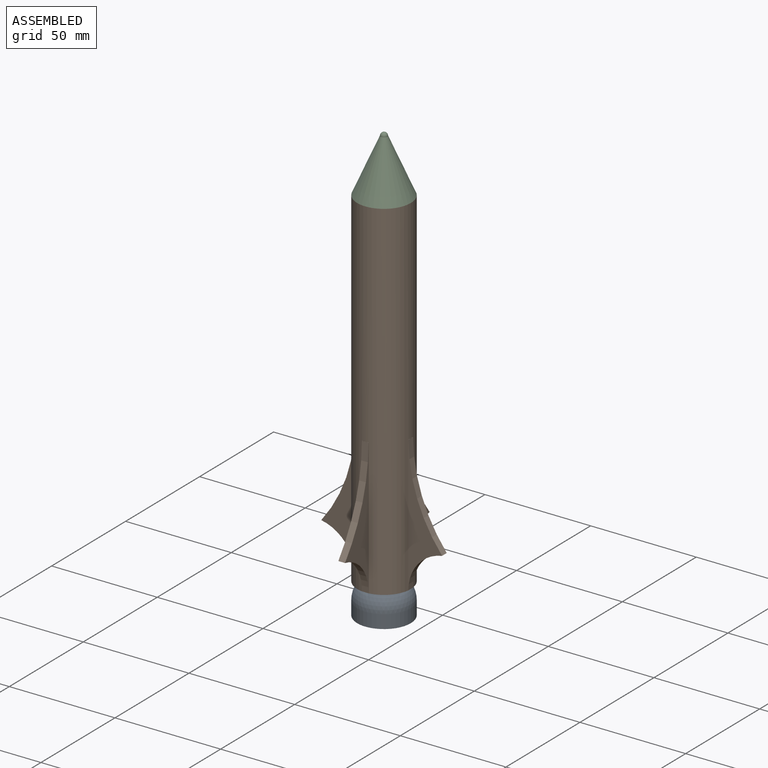
[diagram: assembled view]
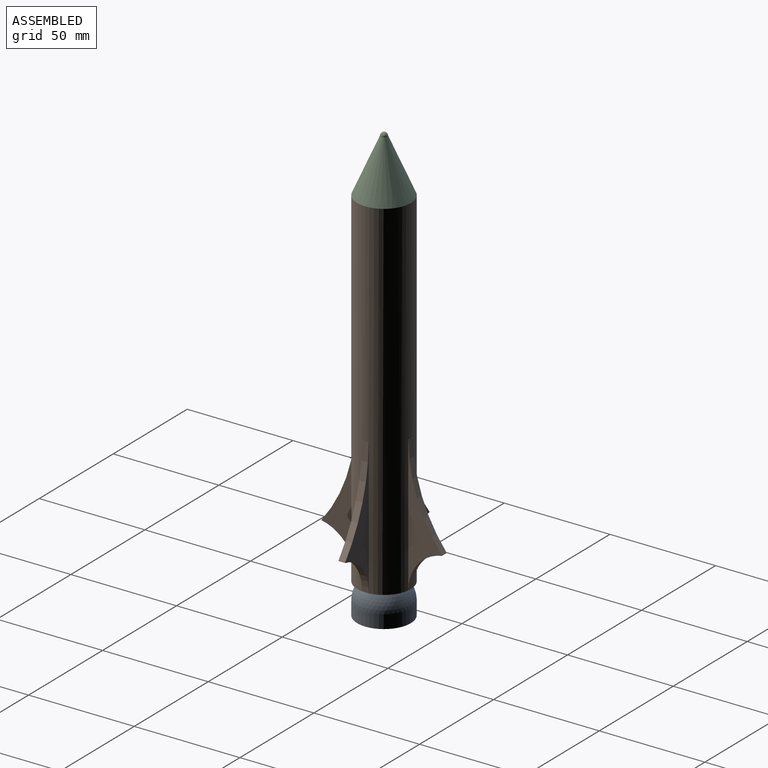
[diagram: assembled view, second angle]
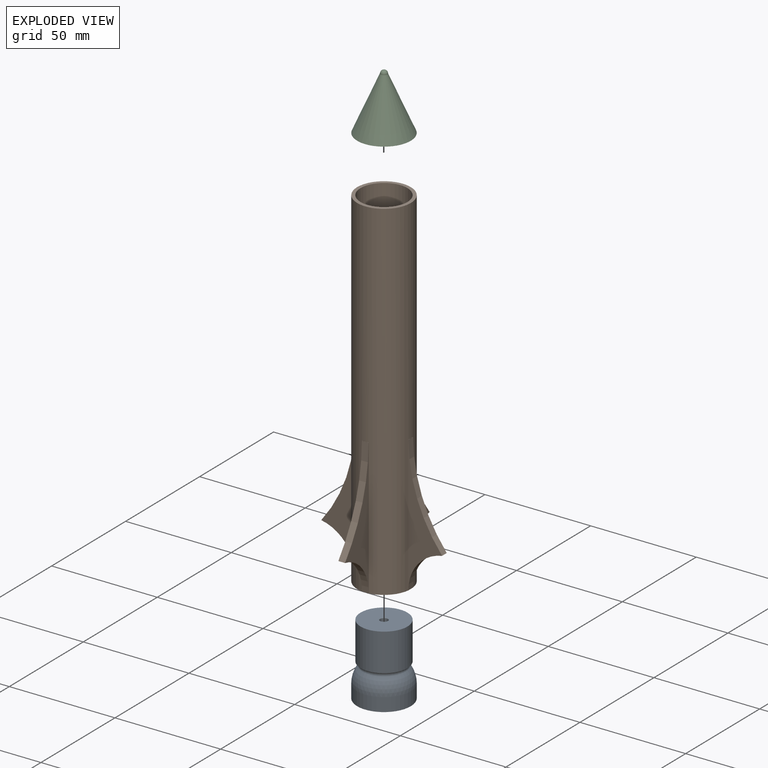
[diagram: exploded view]
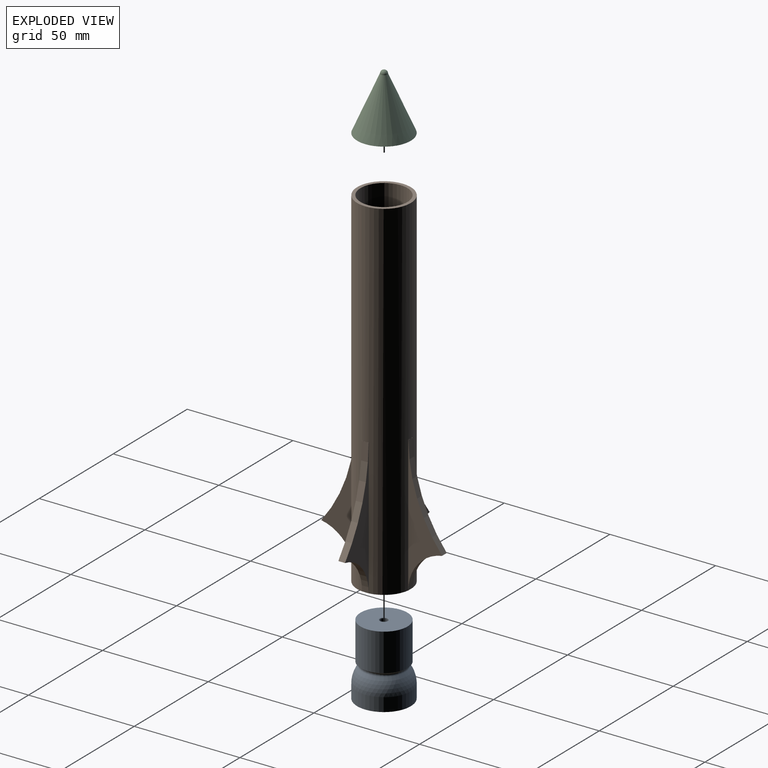
[diagram: exploded view, second angle]
ASSEMBLY  parts=3 mates=2
PART A: 11 faces, bbox 25.4x25.4x33.7 mm
  f0: cylinder r=11.11mm len=22.23mm, axis (0,0,-1), area 1241.4mm2, adj f2,f10
  f1: cylinder r=1.78mm len=12.51mm, axis (0,0,-1), area 139.8mm2, adj f8,f9
  f2: plane 22.23x22.23mm, normal (0,0,-1), area 374.2mm2, adj f0,f9
  f3: sphere r=11.11mm, area 665.1mm2, adj f4,f8
  f4: cylinder r=11.11mm len=22.23mm, axis (0,0,-1), area 443.4mm2, adj f3,f5
  f5: plane 25.4x25.4mm, normal (0,0,1), area 118.8mm2, adj f4,f6
  f6: cylinder r=12.7mm len=25.4mm, axis (0,0,-1), area 506.7mm2, adj f5,f7
  f7: sphere r=12.7mm, area 599.5mm2, adj f6,f10
  f8: torus R=6.86mm, axis (0,0,1), area 136.5mm2, adj f1,f3
  f9: torus R=2.1mm, axis (0,0,1), area 5.9mm2, adj f1,f2
  f10: torus R=11.26mm, axis (0,0,1), area 171.3mm2, adj f0,f7
PART B: 32 faces, bbox 57.2x57.2x165.1 mm
  f0: plane 25.2x25.2mm, normal (0,0,-1), area 117.9mm2, adj f1,f24,f28,f29,f30,f31
  f1: cylinder r=12.7mm len=165.1mm, axis (0,0,-1), area 12354.5mm2, adj f0,f2,f3,f4,f5,f7,f8,f9
  f2: plane 1.59x0.1mm, normal (0,0,1), area 0.1mm2, adj f1,f4,f6
  f3: plane 64.39x15.97mm, normal (0,-1,0), area 308.1mm2, adj f1,f5,f6,f29
  f4: plane 64.39x15.97mm, normal (0,1,0), area 308.1mm2, adj f1,f2,f6,f29
  f5: plane 1.59x0.1mm, normal (0,0,1), area 0.1mm2, adj f1,f3,f6
  f6: cylinder r=72.68mm len=45.34mm, axis (0,1,0), area 155.4mm2, adj f2,f3,f4,f5,f29
  f7: plane 1.59x0.1mm, normal (0,0,1), area 0.1mm2, adj f1,f9,f10
  f8: plane 64.39x15.97mm, normal (0,-1,0), area 308.1mm2, adj f1,f10,f11,f28
  f9: plane 64.39x15.97mm, normal (0,1,0), area 308.1mm2, adj f1,f7,f10,f28
  f10: cylinder r=72.68mm len=45.34mm, axis (0,1,0), area 155.4mm2, adj f7,f8,f9,f11,f28
  f11: plane 1.59x0.1mm, normal (0,0,1), area 0.1mm2, adj f1,f8,f10
  f12: plane 1.59x0.1mm, normal (0,0,1), area 0.1mm2, adj f1,f13,f15
  f13: plane 64.39x15.97mm, normal (1,0,0), area 308.1mm2, adj f1,f12,f15,f31
  f14: plane 64.39x15.97mm, normal (-1,0,0), area 308.1mm2, adj f1,f15,f16,f31
  f15: cylinder r=72.68mm len=45.34mm, axis (-1,0,0), area 155.4mm2, adj f12,f13,f14,f16,f31
  f16: plane 1.59x0.1mm, normal (0,0,1), area 0.1mm2, adj f1,f14,f15
  f17: plane 1.59x0.1mm, normal (0,0,1), area 0.1mm2, adj f1,f18,f21
  f18: plane 64.39x15.97mm, normal (1,0,0), area 308.1mm2, adj f1,f17,f21,f30
  f19: plane 64.39x15.97mm, normal (-1,0,0), area 308.1mm2, adj f1,f20,f21,f30
  f20: plane 1.59x0.1mm, normal (0,0,1), area 0.1mm2, adj f1,f19,f21
  f21: cylinder r=72.68mm len=45.34mm, axis (-1,0,0), area 155.4mm2, adj f17,f18,f19,f20,f30
  f22: plane 25.4x25.4mm, normal (0,0,1), area 118.8mm2, adj f1,f23
  f23: cylinder r=11.11mm len=22.23mm, axis (0,0,1), area 1330.1mm2, adj f22,f27
  f24: cylinder r=11.11mm len=22.23mm, axis (0,0,1), area 1330.1mm2, adj f0,f26
  f25: cylinder r=9.53mm len=127mm, axis (0,0,-1), area 7600.6mm2, adj f26,f27
  f26: plane 22.23x22.23mm, normal (0,0,-1), area 102.9mm2, adj f24,f25
  f27: plane 22.23x22.23mm, normal (0,0,1), area 102.9mm2, adj f23,f25
  f28: cylinder r=19.35mm len=19.05mm, axis (0,-1,0), area 85.7mm2, adj f0,f8,f9,f10
  f29: cylinder r=19.35mm len=19.05mm, axis (0,-1,0), area 85.7mm2, adj f0,f3,f4,f6
  f30: cylinder r=19.35mm len=19.05mm, axis (1,0,0), area 85.7mm2, adj f0,f18,f19,f21
  f31: cylinder r=19.35mm len=19.05mm, axis (1,0,0), area 85.7mm2, adj f0,f13,f14,f15
PART C: 5 faces, bbox 25.4x25.4x27 mm
  f0: cone r=1.19mm half-angle=23.6deg, axis (0,0,-1), area 1174.7mm2, adj f1,f4
  f1: plane 25.4x25.4mm, normal (0,0,-1), area 31.4mm2, adj f0,f2
  f2: cone r=1.59mm half-angle=23.6deg, axis (0,0,-1), area 1244.4mm2, adj f1,f3
  f3: sphere r=1.59mm, area 15.8mm2, adj f2
  f4: sphere r=1.19mm, area 8.9mm2, adj f0
PLACE A rot(axis=(1,0,0),180deg) t=(-70.76,-31.35,14.26)mm
PLACE B t=(-70.76,-31.35,14.26)mm fixed
PLACE C t=(-70.76,-31.35,160.31)mm
MATE fastened C.f0 <-> B.f1  axis (0,0,-1) through (-70.76,-31.35,160.31)mm
MATE fastened A.f4 <-> B.f24  axis (0,0,1) through (-70.76,-31.35,14.26)mm
